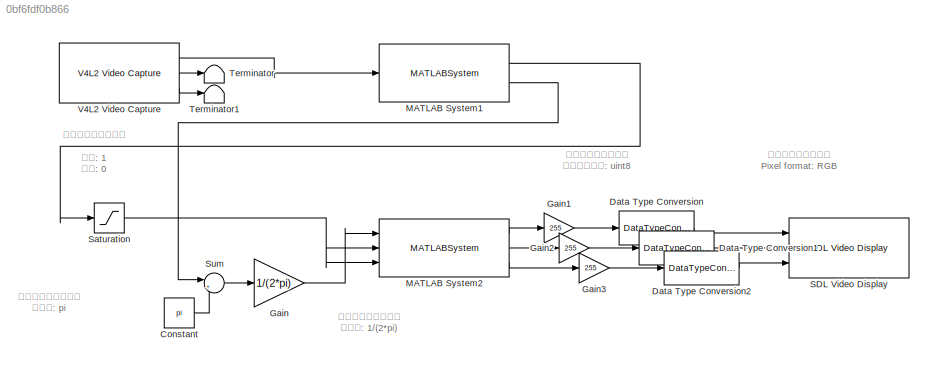
MODEL slx_0bf6fdf0b866
KIND model
CONFIG AbsTol = auto
CONFIG FixedStep = auto
CONFIG MaxStep = auto
CONFIG MinStep = auto
CONFIG RelTol = 1e-3
CONFIG SampleTimeConstraint = Unconstrained
CONFIG Solver = ode45
CONFIG SolverMode = Auto
CONFIG SolverName = ode45
CONFIG StartTime = 0.0
CONFIG StopTime = 10.0
BLOCK [Constant] Constant
  Value = pi
BLOCK [DataTypeConversion] Data Type Conversion
  OutDataTypeStr = uint8
  RndMeth = Floor
  SaturateOnIntegerOverflow = off
BLOCK [DataTypeConversion] Data Type Conversion1
  OutDataTypeStr = uint8
  RndMeth = Floor
  SaturateOnIntegerOverflow = off
BLOCK [DataTypeConversion] Data Type Conversion2
  OutDataTypeStr = uint8
  RndMeth = Floor
  SaturateOnIntegerOverflow = off
BLOCK [Gain] Gain
  Gain = 1/(2*pi)
  OutDataTypeStr = Inherit: Inherit via internal rule
  ParamDataTypeStr = Inherit: Inherit via internal rule
  SaturateOnIntegerOverflow = off
BLOCK [Gain] Gain1
  Gain = 255
  OutDataTypeStr = Inherit: Inherit via internal rule
  ParamDataTypeStr = Inherit: Inherit via internal rule
  SaturateOnIntegerOverflow = off
BLOCK [Gain] Gain2
  Gain = 255
  OutDataTypeStr = Inherit: Inherit via internal rule
  ParamDataTypeStr = Inherit: Inherit via internal rule
  SaturateOnIntegerOverflow = off
BLOCK [Gain] Gain3
  Gain = 255
  OutDataTypeStr = Inherit: Inherit via internal rule
  ParamDataTypeStr = Inherit: Inherit via internal rule
  SaturateOnIntegerOverflow = off
BLOCK [MATLABSystem] MATLAB System1
  Kernel = [ 1, 1, 1; 0, 0, 0; -1, -1, -1 ].'
  MaskDisplay = disp('Grad. Filt.');\nport_label('input',1,'Gray');\nport_label('output',1,'Mag.');\nport_label('output',2,'Ang.');
  MaskType = GradFiltSystem
  Ports = [1, 2]
  SimulateUsing = Code generation
  System = GradFiltSystem
BLOCK [MATLABSystem] MATLAB System2
  MaskDisplay = disp('HSV to RGB');\nport_label('input',1,'H');\nport_label('input',2,'S');\nport_label('input',3,'V');\nport_label('output',1,'R');\nport_label('output',2,'G');\nport_label('output',3,'B');
  MaskType = Hsv2RgbSystem
  Ports = [3, 3]
  SimulateUsing = Code generation
  System = Hsv2RgbSystem
BLOCK [Reference] SDL Video Display  REF=embdlinuxlib/SDL Video Display
  Ports = [3]
  SourceBlock = embdlinuxlib/SDL Video Display
  SourceType = SDL Video Display
  blockPlatform = Raspberry Pi
  pixelFormat = RGB
  pixelOrder = Planar
  rowMajor = on
BLOCK [Saturate] Saturation
  InputPortMap = u0
  LowerLimit = 0
  Ports = [1, 1]
  UpperLimit = 1
BLOCK [Sum] Sum
  IconShape = round
  InputSameDT = off
  Inputs = |++
  OutDataTypeStr = Inherit: Inherit via internal rule
  Ports = [2, 1]
  SaturateOnIntegerOverflow = off
BLOCK [Terminator] Terminator
BLOCK [Terminator] Terminator1
BLOCK [Reference] V4L2 Video Capture  REF=embdlinuxlib/V4L2 Video Capture
  Ports = [0, 3]
  SourceBlock = embdlinuxlib/V4L2 Video Capture
  SourceType = V4L2 Video Capture
  blockPlatform = Raspberry Pi
  imSize = [640, 480]
  imSizeSelection = 320x240
  m_devName = '/dev/video0'
  pixelFormat = YCbCr 4:2:2
  pixelOrder = Planar
  roi = [0, 0, 640, 480]
  sampleTime = 1/5
  simOutput = Colorbars
ANNOTATION (root): ブロックパラメータ Pixel format: RGB
ANNOTATION (root): ブロックパラメータ ゲイン: 1/(2*pi)
ANNOTATION (root): ブロックパラメータ 上限: 1 下限: 0
ANNOTATION (root): ブロックパラメータ 出力データ型: uint8
ANNOTATION (root): ブロックパラメータ 定数値: pi
LINE Constant:1 -> Sum:2
LINE Data Type Conversion1:1 -> SDL Video Display:2
LINE Data Type Conversion2:1 -> SDL Video Display:3
LINE Data Type Conversion:1 -> SDL Video Display:1
LINE Gain1:1 -> Data Type Conversion:1
LINE Gain2:1 -> Data Type Conversion1:1
LINE Gain3:1 -> Data Type Conversion2:1
LINE Gain:1 -> MATLAB System2:1
LINE MATLAB System1:1 -> Saturation:1
LINE MATLAB System1:2 -> Sum:1
LINE MATLAB System2:1 -> Gain1:1
LINE MATLAB System2:2 -> Gain2:1
LINE MATLAB System2:3 -> Gain3:1
NET Saturation:1 -> MATLAB System2:2, MATLAB System2:3
LINE Sum:1 -> Gain:1
LINE V4L2 Video Capture:1 -> MATLAB System1:1
LINE V4L2 Video Capture:2 -> Terminator:1
LINE V4L2 Video Capture:3 -> Terminator1:1
note: NET lines group one-source signal fan-out (src -> all destinations, sorted); 1:1 wires keep LINE
